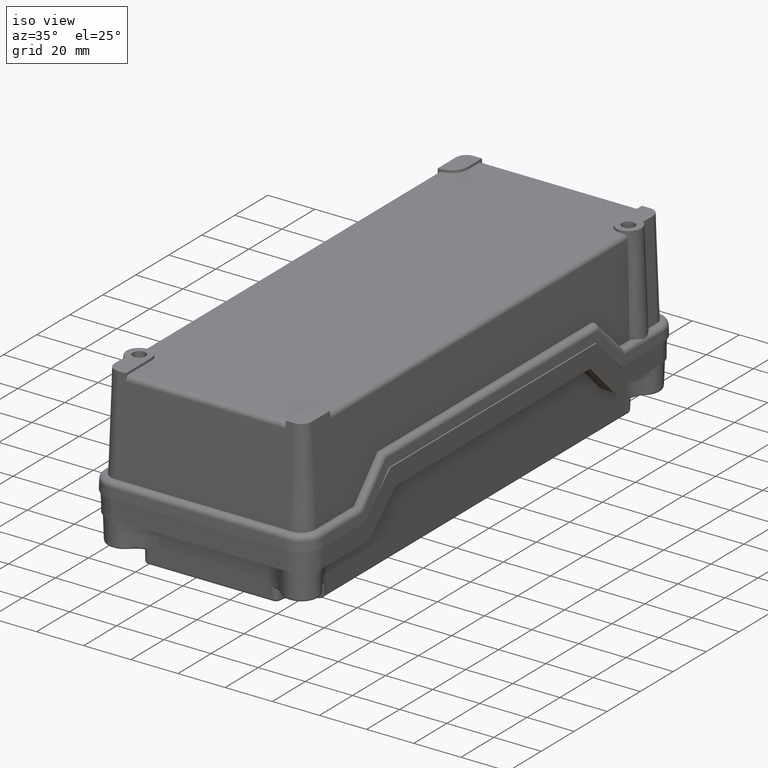
[diagram: clean part render]
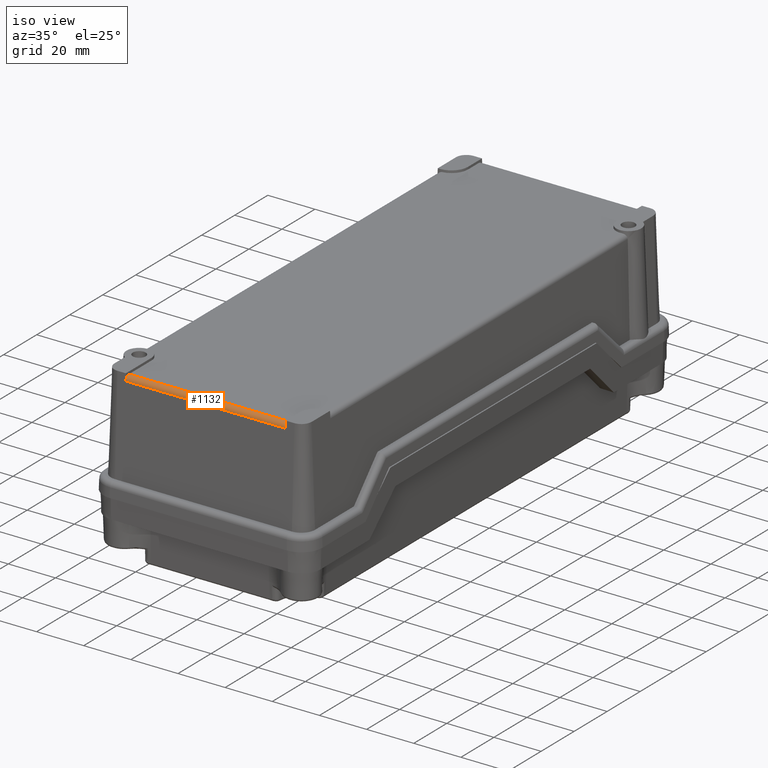
[diagram: same view with one face highlighted and labeled with its STEP entity id]
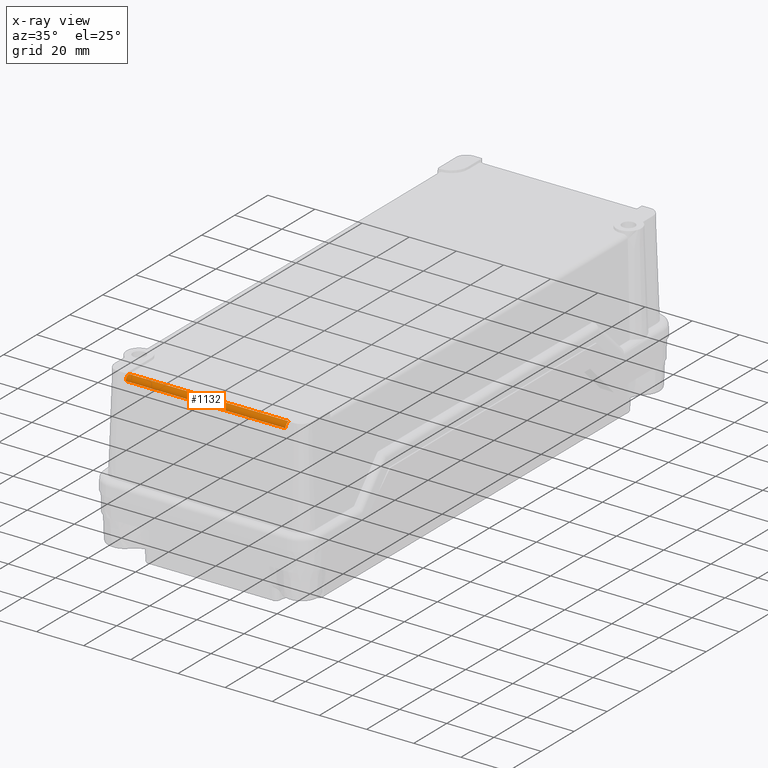
[diagram: x-ray of the same camera — body ghosted, the highlighted face saturated]
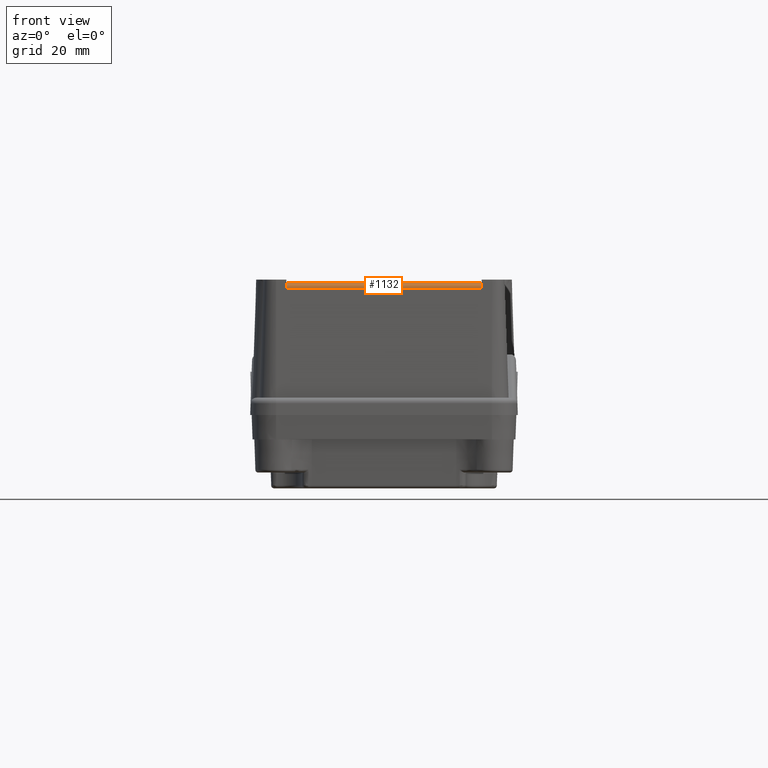
[diagram: same view with one face highlighted and labeled with its STEP entity id]
A machine part, iso view. The second image highlights one B-rep face of the part: STEP entity #1132.
The next image is the same camera in x-ray: the body ghosted, the highlighted face saturated — about 0% of this face is hidden behind the body in this view.
A second angle (front view) of the same face is appended — the face is thin or edge-on in the first view.
In plain terms, the highlighted cylindrical surface (edge-blend (fillet) strip) has radius 2 mm, axis along (1, 0, 0).
Its self-contained STEP definition (entity closure, byte-faithful):
#1091=CARTESIAN_POINT('',(12.635091562884355,-20.362680044328975,44.0));
#1092=DIRECTION('',(1.0,0.0,0.0));
#1093=DIRECTION('',(0.0,-0.694658370458998,0.719339800338651));
#1094=AXIS2_PLACEMENT_3D('',#1091,#1092,#1093);
#1095=CYLINDRICAL_SURFACE('',#1094,2.0);
#1096=CARTESIAN_POINT('',(-2.508553040495217,-20.362680044328968,46.000000000000007));
#1097=VERTEX_POINT('',#1096);
#1098=CARTESIAN_POINT('',(-2.441148936071174,-22.361461698367158,44.069798993405001));
#1099=VERTEX_POINT('',#1098);
#1100=CARTESIAN_POINT('',(-2.438711501511721,-20.362680044328975,44.0));
#1101=DIRECTION('',(-0.999390827019096,-5.685246E-016,-0.034899496702501));
#1102=DIRECTION('',(-0.034899496702501,4.549141E-014,0.999390827019096));
#1103=AXIS2_PLACEMENT_3D('',#1100,#1101,#1102);
#1104=ELLIPSE('',#1103,2.001219088597643,2.000000000000000);
#1105=EDGE_CURVE('',#1097,#1099,#1104,.F.);
#1106=ORIENTED_EDGE('',*,*,#1105,.T.);
#1107=CARTESIAN_POINT('',(65.211332061839954,-22.361461698367158,44.069798993405001));
#1108=VERTEX_POINT('',#1107);
#1109=CARTESIAN_POINT('',(-2.441148936071174,-22.361461698367158,44.069798993405001));
#1110=DIRECTION('',(1.0,0.0,0.0));
#1111=VECTOR('',#1110,67.652480997911127);
#1112=LINE('',#1109,#1111);
#1113=EDGE_CURVE('',#1099,#1108,#1112,.T.);
#1114=ORIENTED_EDGE('',*,*,#1113,.T.);
#1115=CARTESIAN_POINT('',(65.278736166263997,-20.362680044328968,46.000000000000007));
#1116=VERTEX_POINT('',#1115);
#1117=CARTESIAN_POINT('',(65.208894627280500,-20.362680044328975,44.0));
#1118=DIRECTION('',(0.999390827019096,-1.972152E-031,-0.034899496702500));
#1119=DIRECTION('',(0.034899496702500,4.292559E-014,0.999390827019096));
#1120=AXIS2_PLACEMENT_3D('',#1117,#1118,#1119);
#1121=ELLIPSE('',#1120,2.001219088597643,2.0);
#1122=EDGE_CURVE('',#1108,#1116,#1121,.F.);
#1123=ORIENTED_EDGE('',*,*,#1122,.T.);
#1124=CARTESIAN_POINT('',(65.278736166263997,-20.362680044328968,46.000000000000007));
#1125=DIRECTION('',(-1.0,0.0,0.0));
#1126=VECTOR('',#1125,67.787289206759212);
#1127=LINE('',#1124,#1126);
#1128=EDGE_CURVE('',#1116,#1097,#1127,.T.);
#1129=ORIENTED_EDGE('',*,*,#1128,.T.);
#1130=EDGE_LOOP('',(#1106,#1114,#1123,#1129));
#1131=FACE_OUTER_BOUND('',#1130,.T.);
#1132=ADVANCED_FACE('',(#1131),#1095,.T.);